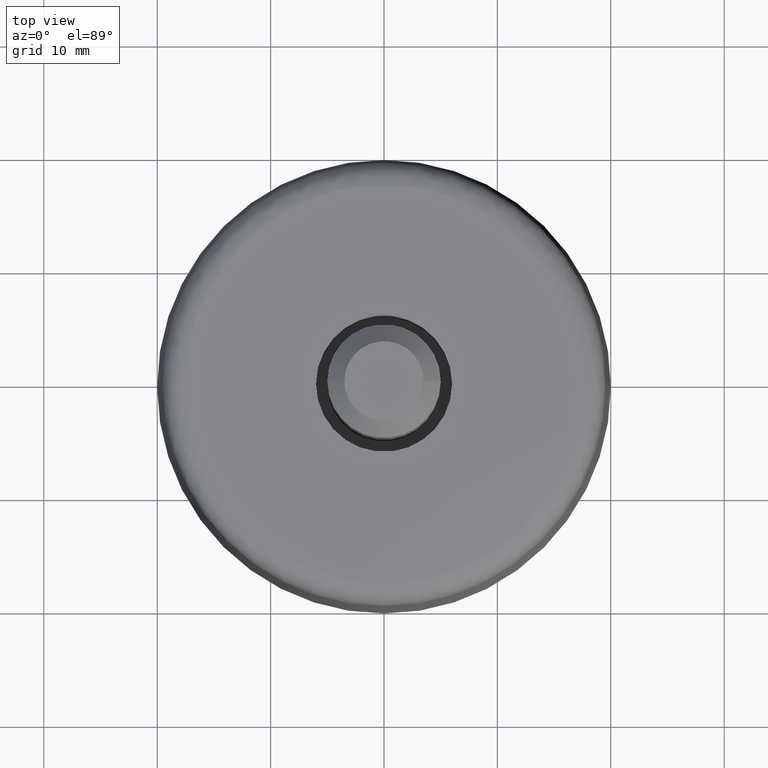
[diagram: clean part render]
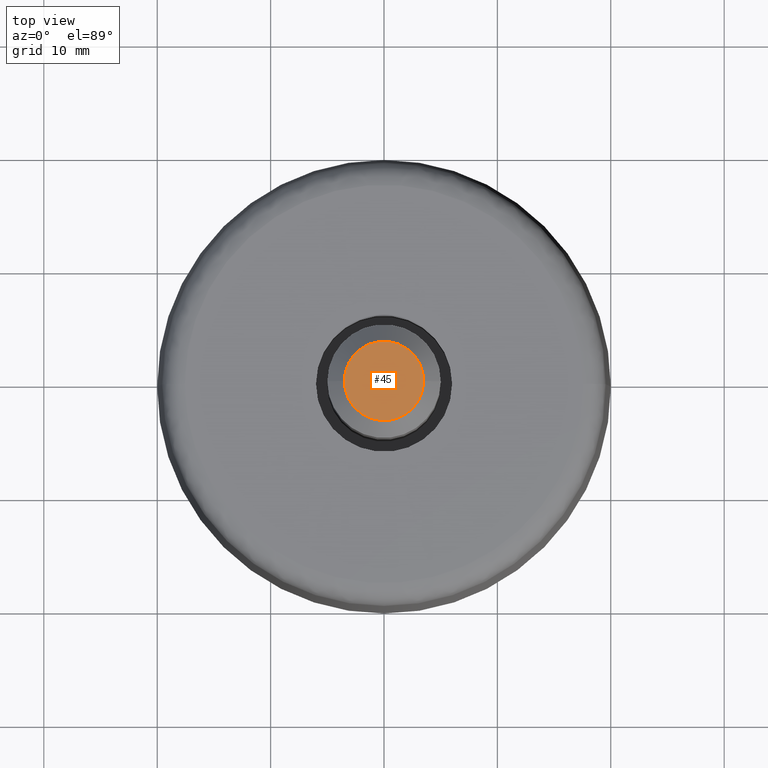
[diagram: same view with one face highlighted and labeled with its STEP entity id]
A machine part, top view. The second image highlights one B-rep face of the part: STEP entity #45.
In plain terms, the highlighted planar face has unit normal (0, 0, 1).
Its self-contained STEP definition (entity closure, byte-faithful):
#45=ADVANCED_FACE('',(#252),#251,.T.);
#251=PLANE('',#1845);
#252=FACE_OUTER_BOUND('',#1846,.T.);
#1842=CARTESIAN_POINT('',(-8.05000000000E+00,-7.27461339179E+00,3.10000000000E+01));
#1843=DIRECTION('',(0.00000000000E+00,0.00000000000E+00,1.00000000000E+00));
#1844=DIRECTION('',(1.00000000000E+00,0.00000000000E+00,-0.00000000000E+00));
#1845=AXIS2_PLACEMENT_3D('',#1842,#1843,#1844);
#1846=EDGE_LOOP('',(#2796,#2797));
#2796=ORIENTED_EDGE('',*,*,#3624,.T.);
#2797=ORIENTED_EDGE('',*,*,#3625,.T.);
#3624=EDGE_CURVE('',#4254,#4255,#4256,.T.);
#3625=EDGE_CURVE('',#4255,#4254,#4262,.T.);
#4254=VERTEX_POINT('',#6910);
#4255=VERTEX_POINT('',#6911);
#4256=CIRCLE('',#6915,3.50000000000E+00);
#4262=CIRCLE('',#6919,3.50000000000E+00);
#6910=CARTESIAN_POINT('',(3.50000000000E+00,0.00000000000E+00,3.10000000000E+01));
#6911=CARTESIAN_POINT('',(-3.50000000000E+00,0.00000000000E+00,3.10000000000E+01));
#6912=CARTESIAN_POINT('',(0.00000000000E+00,0.00000000000E+00,3.10000000000E+01));
#6913=DIRECTION('',(0.00000000000E+00,0.00000000000E+00,1.00000000000E+00));
#6914=DIRECTION('',(1.00000000000E+00,-1.22460635382E-16,0.00000000000E+00));
#6915=AXIS2_PLACEMENT_3D('',#6912,#6913,#6914);
#6916=CARTESIAN_POINT('',(0.00000000000E+00,0.00000000000E+00,3.10000000000E+01));
#6917=DIRECTION('',(0.00000000000E+00,0.00000000000E+00,1.00000000000E+00));
#6918=DIRECTION('',(1.00000000000E+00,-1.22460635382E-16,0.00000000000E+00));
#6919=AXIS2_PLACEMENT_3D('',#6916,#6917,#6918);